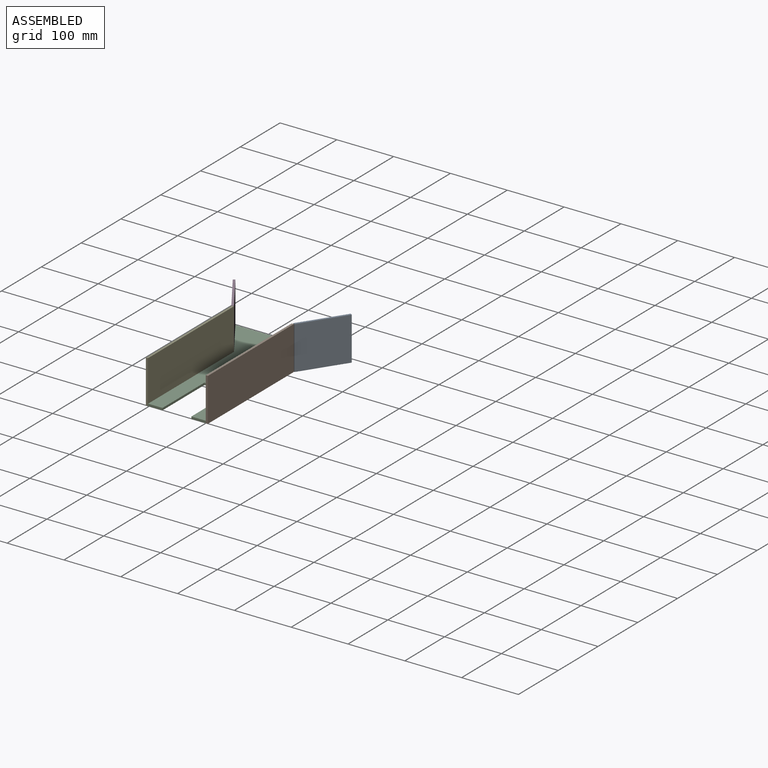
[diagram: assembled view]
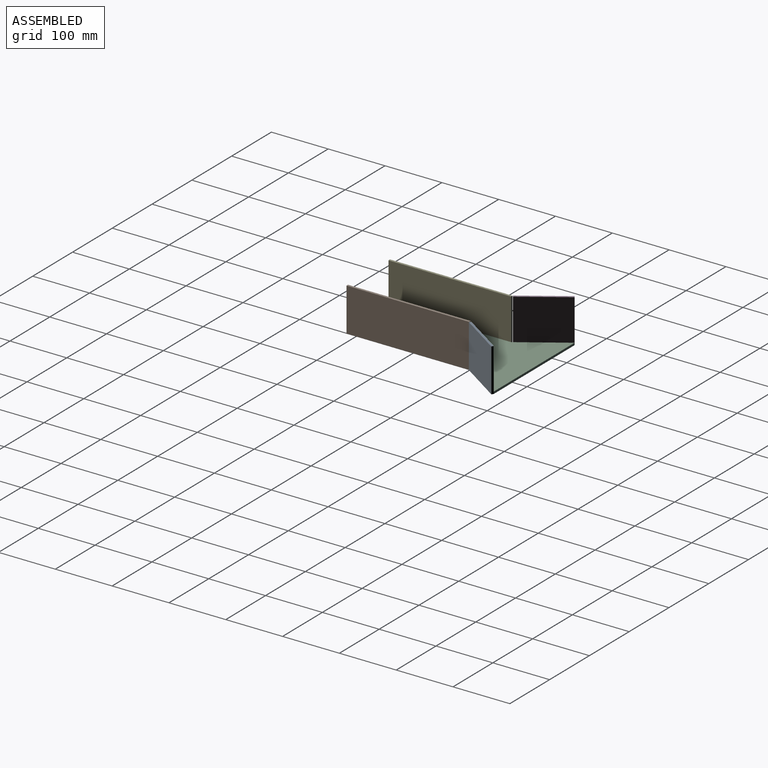
[diagram: assembled view, second angle]
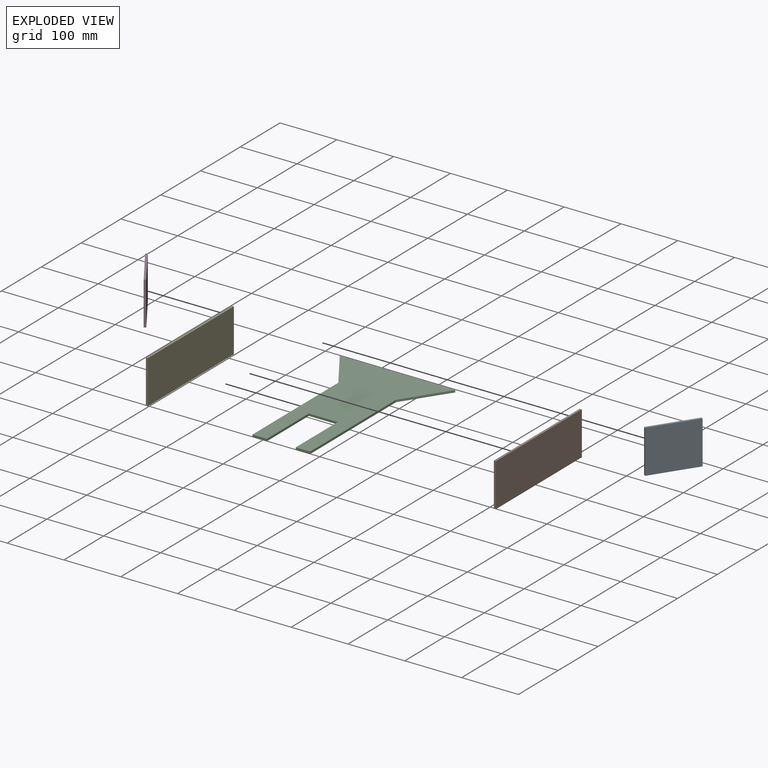
[diagram: exploded view]
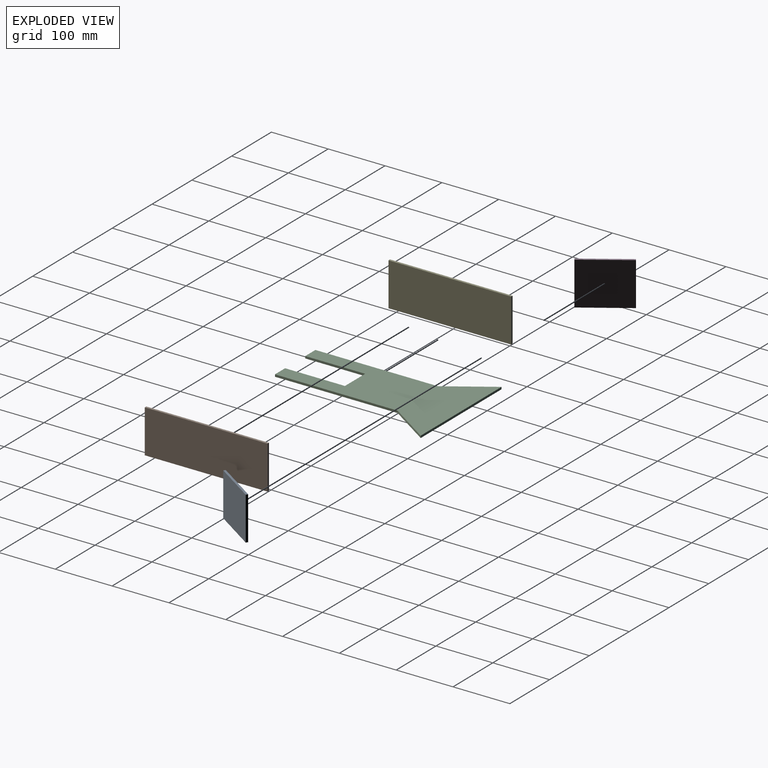
[diagram: exploded view, second angle]
ASSEMBLY  parts=5 mates=4
PART A: 6 faces, bbox 88.9x3.8x76.2 mm
  f0: plane 76.2x3.81mm, normal (1,0,0), area 290.3mm2, adj f1,f3,f4,f5
  f1: plane 88.9x3.81mm, normal (0,0,1), area 338.7mm2, adj f0,f2,f4,f5
  f2: plane 76.2x3.81mm, normal (-1,0,0), area 290.3mm2, adj f1,f3,f4,f5
  f3: plane 88.9x3.81mm, normal (0,0,-1), area 338.7mm2, adj f0,f2,f4,f5
  f4: plane 88.9x76.2mm, normal (0,-1,0), area 6774.2mm2, adj f0,f1,f2,f3
  f5: plane 88.9x76.2mm, normal (0,1,0), area 6774.2mm2, adj f0,f1,f2,f3
PART B: 6 faces, bbox 215.9x3.8x76.2 mm
  f0: plane 76.2x3.81mm, normal (1,0,0), area 290.3mm2, adj f1,f3,f4,f5
  f1: plane 215.9x3.81mm, normal (0,0,1), area 822.6mm2, adj f0,f2,f4,f5
  f2: plane 76.2x3.81mm, normal (-1,0,0), area 290.3mm2, adj f1,f3,f4,f5
  f3: plane 215.9x3.81mm, normal (0,0,-1), area 822.6mm2, adj f0,f2,f4,f5
  f4: plane 215.9x76.2mm, normal (0,-1,0), area 16451.6mm2, adj f0,f1,f2,f3
  f5: plane 215.9x76.2mm, normal (0,1,0), area 16451.6mm2, adj f0,f1,f2,f3
PART C: 12 faces, bbox 203.2x292.1x3.8 mm
  f0: plane 76.2x50.8mm, normal (0.83,-0.55,0), area 348.9mm2, adj f1,f9,f10,f11
  f1: plane 203.2x3.81mm, normal (0,1,0), area 774.2mm2, adj f0,f2,f10,f11
  f2: plane 76.2x50.8mm, normal (-0.83,-0.55,0), area 348.9mm2, adj f1,f3,f10,f11
  f3: plane 215.9x3.81mm, normal (-1,0,0), area 822.6mm2, adj f2,f4,f10,f11
  f4: plane 25.4x3.81mm, normal (0,-1,0), area 96.8mm2, adj f3,f5,f10,f11
  f5: plane 105.41x3.81mm, normal (1,0,0), area 401.6mm2, adj f4,f6,f10,f11
  f6: plane 50.8x3.81mm, normal (0,-1,0), area 193.5mm2, adj f5,f7,f10,f11
  f7: plane 105.41x3.81mm, normal (-1,0,0), area 401.6mm2, adj f6,f8,f10,f11
  f8: plane 25.4x3.81mm, normal (0,-1,0), area 96.8mm2, adj f7,f9,f10,f11
  f9: plane 215.9x3.81mm, normal (1,0,0), area 822.6mm2, adj f0,f8,f10,f11
  f10: plane 292.1x203.2mm, normal (0,0,1), area 28193.5mm2, adj f0,f1,f2,f3,f4,f5,f6,f7
  f11: plane 292.1x203.2mm, normal (0,0,-1), area 28193.5mm2, adj f0,f1,f2,f3,f4,f5,f6,f7
PART D: same geometry as A
PART E: same geometry as B
PLACE A rot(axis=(0,0,-1),123.7deg) t=(11.37,105.81,90.04)mm
PLACE B rot(axis=(0,0,-1),90deg) t=(10.52,-110.21,90.04)mm
PLACE C t=(6.71,-110.21,90.04)mm
PLACE D rot(axis=(0,0,1),123.7deg) t=(-148.86,179.78,90.04)mm
PLACE E rot(axis=(0,0,1),90deg) t=(-98.7,105.69,90.04)mm
MATE fastened A.f4 <-> C.f0  axis (-0.83,0.55,0) through (57.51,181.89,90.04)mm
MATE fastened B.f4 <-> C.f9  axis (-1,0,0) through (6.71,-110.21,90.04)mm
MATE fastened D.f4 <-> C.f2  axis (0.83,0.55,0) through (-145.69,181.89,90.04)mm
MATE fastened E.f4 <-> C.f3  axis (1,0,0) through (-94.89,-110.21,90.04)mm
